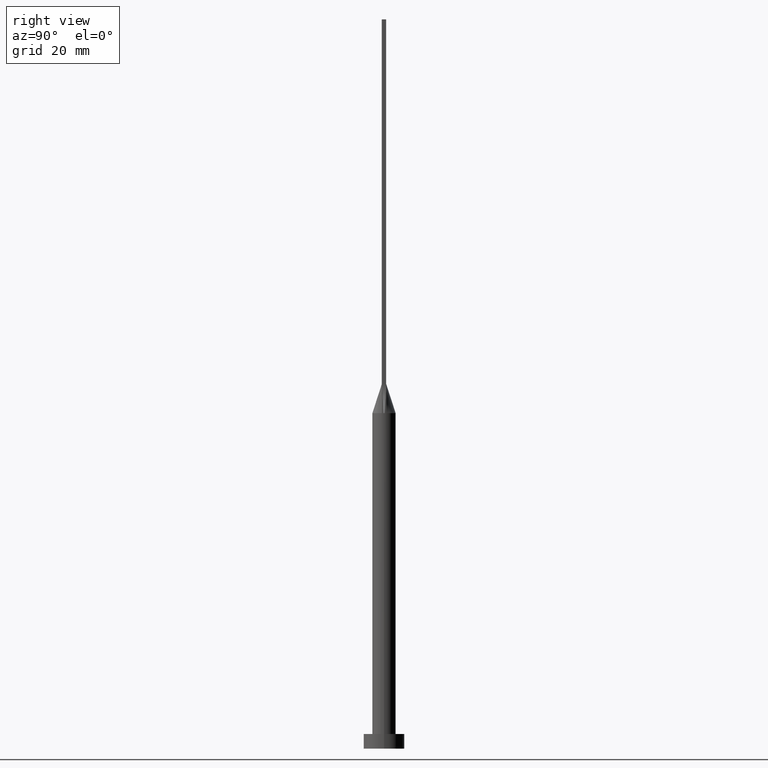
[diagram: clean part render]
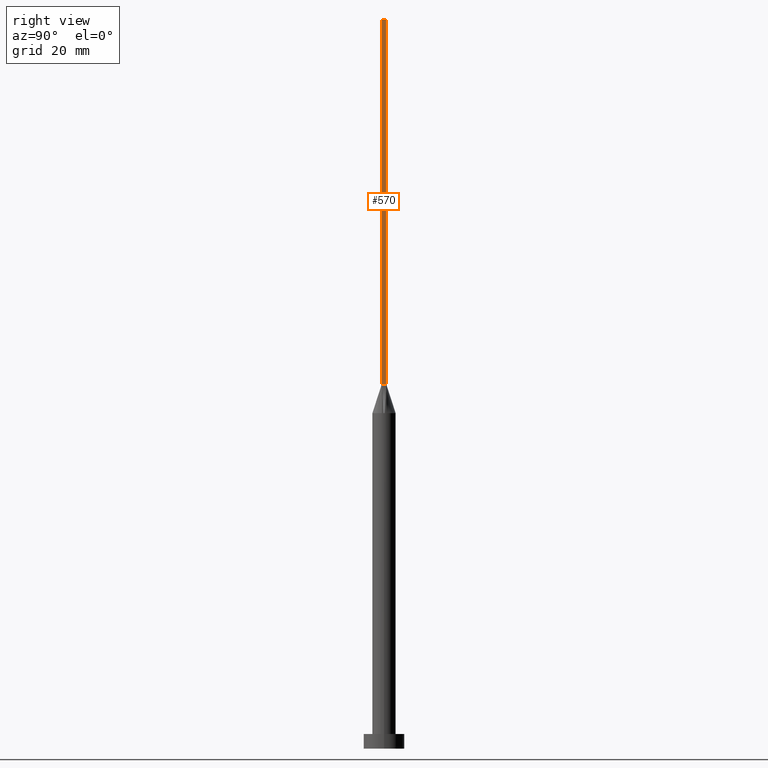
[diagram: same view with one face highlighted and labeled with its STEP entity id]
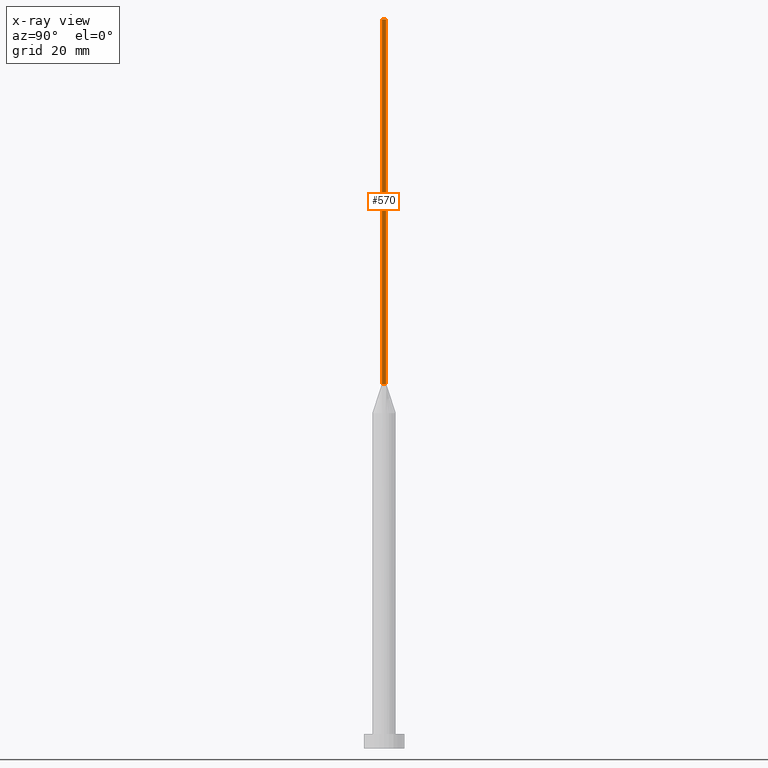
[diagram: x-ray of the same camera — body ghosted, the highlighted face saturated]
A machine part, right view. The second image highlights one B-rep face of the part: STEP entity #570.
The next image is the same camera in x-ray: the body ghosted, the highlighted face saturated — about 0% of this face is hidden behind the body in this view.
In plain terms, the highlighted planar face has unit normal (-1, 0, 0).
Its self-contained STEP definition (entity closure, byte-faithful):
#7 = EDGE_CURVE ( 'NONE', #567, #223, #100, .T. ) ;
#32 = DIRECTION ( 'NONE',  ( 0.000000000000000000, 0.000000000000000000, 1.000000000000000000 ) ) ;
#41 = ORIENTED_EDGE ( 'NONE', *, *, #455, .T. ) ;
#47 = DIRECTION ( 'NONE',  ( 0.000000000000000000, 1.000000000000000000, 0.000000000000000000 ) ) ;
#53 = DIRECTION ( 'NONE',  ( -0.000000000000000000, -0.000000000000000000, -1.000000000000000000 ) ) ;
#78 = CARTESIAN_POINT ( 'NONE',  ( 3.750000000000000000, -0.7499999999999997780, 125.0000000000000000 ) ) ;
#80 = ORIENTED_EDGE ( 'NONE', *, *, #576, .F. ) ;
#100 = LINE ( 'NONE', #322, #558 ) ;
#127 = CARTESIAN_POINT ( 'NONE',  ( 3.750000000000000000, 0.7500000000000002220, 250.0000000000000000 ) ) ;
#167 = CARTESIAN_POINT ( 'NONE',  ( 3.750000000000000000, -0.7499999999999997780, 250.0000000000000000 ) ) ;
#183 = CARTESIAN_POINT ( 'NONE',  ( 3.750000000000000000, -0.7499999999999997780, 250.0000000000000000 ) ) ;
#217 = FACE_OUTER_BOUND ( 'NONE', #557, .T. ) ;
#223 = VERTEX_POINT ( 'NONE', #78 ) ;
#228 = VECTOR ( 'NONE', #461, 1000.000000000000000 ) ;
#236 = VECTOR ( 'NONE', #382, 1000.000000000000000 ) ;
#248 = ORIENTED_EDGE ( 'NONE', *, *, #393, .F. ) ;
#283 = LINE ( 'NONE', #286, #228 ) ;
#286 = CARTESIAN_POINT ( 'NONE',  ( 3.750000000000000000, 0.7500000000000002220, 125.0000000000000000 ) ) ;
#297 = VERTEX_POINT ( 'NONE', #387 ) ;
#322 = CARTESIAN_POINT ( 'NONE',  ( 3.750000000000000000, -0.7499999999999997780, 250.0000000000000000 ) ) ;
#341 = LINE ( 'NONE', #127, #236 ) ;
#351 = ORIENTED_EDGE ( 'NONE', *, *, #7, .T. ) ;
#382 = DIRECTION ( 'NONE',  ( -0.000000000000000000, -0.000000000000000000, -1.000000000000000000 ) ) ;
#387 = CARTESIAN_POINT ( 'NONE',  ( 3.750000000000000000, 0.7500000000000002220, 125.0000000000000000 ) ) ;
#393 = EDGE_CURVE ( 'NONE', #567, #506, #394, .T. ) ;
#394 = LINE ( 'NONE', #183, #538 ) ;
#419 = AXIS2_PLACEMENT_3D ( 'NONE', #167, #573, #32 ) ;
#422 = PLANE ( 'NONE',  #419 ) ;
#455 = EDGE_CURVE ( 'NONE', #223, #297, #283, .T. ) ;
#461 = DIRECTION ( 'NONE',  ( -0.000000000000000000, 1.000000000000000000, -0.000000000000000000 ) ) ;
#474 = CARTESIAN_POINT ( 'NONE',  ( 3.750000000000000000, 0.7500000000000002220, 250.0000000000000000 ) ) ;
#506 = VERTEX_POINT ( 'NONE', #474 ) ;
#538 = VECTOR ( 'NONE', #47, 1000.000000000000000 ) ;
#557 = EDGE_LOOP ( 'NONE', ( #41, #80, #248, #351 ) ) ;
#558 = VECTOR ( 'NONE', #53, 1000.000000000000000 ) ;
#567 = VERTEX_POINT ( 'NONE', #571 ) ;
#570 = ADVANCED_FACE ( 'NONE', ( #217 ), #422, .F. ) ;
#571 = CARTESIAN_POINT ( 'NONE',  ( 3.750000000000000000, -0.7499999999999997780, 250.0000000000000000 ) ) ;
#573 = DIRECTION ( 'NONE',  ( -1.000000000000000000, 0.000000000000000000, 0.000000000000000000 ) ) ;
#576 = EDGE_CURVE ( 'NONE', #506, #297, #341, .T. ) ;